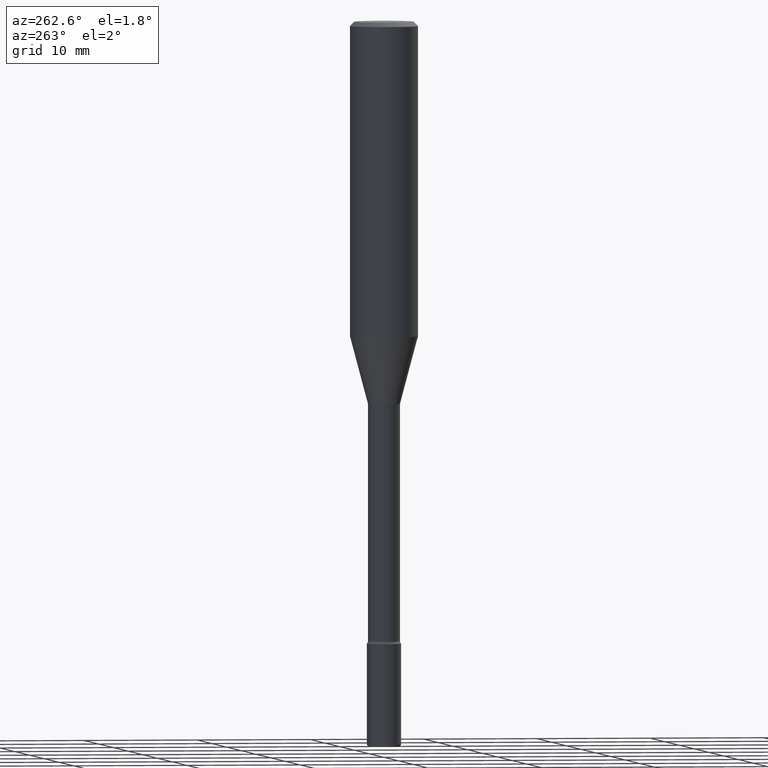
[diagram: clean part render]
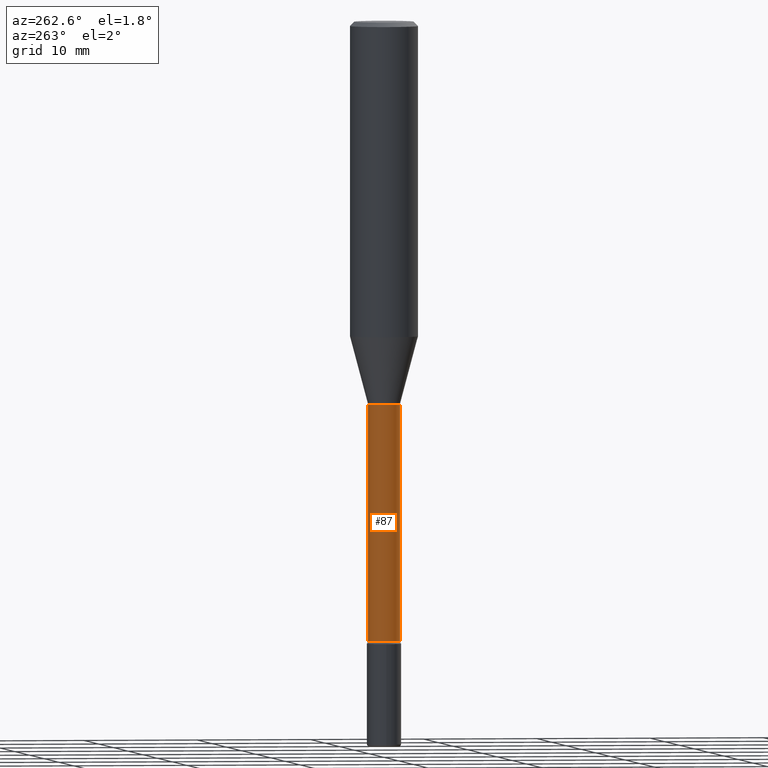
[diagram: same view with one face highlighted and labeled with its STEP entity id]
A machine part, auxiliary view. The second image highlights one B-rep face of the part: STEP entity #87.
In plain terms, the highlighted cylindrical surface (edge-blend (fillet) strip) has radius 1.4097 mm, axis along (-0, 0, 1).
Its self-contained STEP definition (entity closure, byte-faithful):
#2 = VECTOR ( 'NONE', #45, 39.37007874015748143 ) ;
#4 = LINE ( 'NONE', #530, #2 ) ;
#8 = DIRECTION ( 'NONE',  ( -2.445314574720221452E-29, 3.491702207079214016E-15, 1.000000000000000000 ) ) ;
#40 = CIRCLE ( 'NONE', #333, 0.05550000000000001460 ) ;
#45 = DIRECTION ( 'NONE',  ( -2.445314574720221172E-29, 3.491702207079214016E-15, 1.000000000000000000 ) ) ;
#77 = EDGE_LOOP ( 'NONE', ( #473, #384, #168, #252 ) ) ;
#79 = EDGE_CURVE ( 'NONE', #220, #422, #218, .T. ) ;
#86 = CARTESIAN_POINT ( 'NONE',  ( 4.069633519066500838E-16, 0.05549999999999261774, -2.136009927760847749 ) ) ;
#87 = ADVANCED_FACE ( 'NONE', ( #276 ), #487, .T. ) ;
#138 = CARTESIAN_POINT ( 'NONE',  ( -3.875544286115555499E-16, -0.05550000000000462202, -1.320874787463810707 ) ) ;
#143 = DIRECTION ( 'NONE',  ( -6.982962677686265922E-15, -1.000000000000000000, 4.922248637232899302E-15 ) ) ;
#168 = ORIENTED_EDGE ( 'NONE', *, *, #570, .T. ) ;
#192 = DIRECTION ( 'NONE',  ( -2.445314574720221172E-29, 3.491702207079214016E-15, 1.000000000000000000 ) ) ;
#218 = CIRCLE ( 'NONE', #494, 0.05550000000000008399 ) ;
#220 = VERTEX_POINT ( 'NONE', #86 ) ;
#225 = VERTEX_POINT ( 'NONE', #138 ) ;
#238 = EDGE_CURVE ( 'NONE', #220, #353, #499, .T. ) ;
#243 = CARTESIAN_POINT ( 'NONE',  ( 3.943512183469081661E-16, 0.05549999999999540023, -1.320874787463811373 ) ) ;
#252 = ORIENTED_EDGE ( 'NONE', *, *, #436, .F. ) ;
#276 = FACE_OUTER_BOUND ( 'NONE', #77, .T. ) ;
#289 = AXIS2_PLACEMENT_3D ( 'NONE', #446, #544, #451 ) ;
#324 = VECTOR ( 'NONE', #192, 39.37007874015748143 ) ;
#333 = AXIS2_PLACEMENT_3D ( 'NONE', #392, #8, #520 ) ;
#353 = VERTEX_POINT ( 'NONE', #243 ) ;
#354 = CARTESIAN_POINT ( 'NONE',  ( 5.223216208100687058E-29, -7.458310579105662270E-15, -2.136009927760847305 ) ) ;
#384 = ORIENTED_EDGE ( 'NONE', *, *, #79, .T. ) ;
#392 = CARTESIAN_POINT ( 'NONE',  ( 3.229954369165731744E-29, -4.612101410662676179E-15, -1.320874787463810929 ) ) ;
#422 = VERTEX_POINT ( 'NONE', #431 ) ;
#431 = CARTESIAN_POINT ( 'NONE',  ( -3.875544286115360749E-16, -0.05550000000000754330, -2.136009927760847305 ) ) ;
#436 = EDGE_CURVE ( 'NONE', #353, #225, #40, .T. ) ;
#446 = CARTESIAN_POINT ( 'NONE',  ( -1.169113584055446105E-44, 1.669184350826100908E-30, 4.780733988912460139E-16 ) ) ;
#451 = DIRECTION ( 'NONE',  ( -6.982962677686265922E-15, -1.000000000000000000, 3.491702207079214016E-15 ) ) ;
#473 = ORIENTED_EDGE ( 'NONE', *, *, #238, .F. ) ;
#487 = CYLINDRICAL_SURFACE ( 'NONE', #289, 0.05550000000000004929 ) ;
#494 = AXIS2_PLACEMENT_3D ( 'NONE', #354, #534, #143 ) ;
#499 = LINE ( 'NONE', #542, #324 ) ;
#520 = DIRECTION ( 'NONE',  ( -6.982962677686265922E-15, -1.000000000000000000, 4.922248637232905613E-15 ) ) ;
#530 = CARTESIAN_POINT ( 'NONE',  ( -3.875544286115880904E-16, -0.05550000000000004929, 6.718628713841425539E-16 ) ) ;
#534 = DIRECTION ( 'NONE',  ( -2.445314574720221452E-29, 3.491702207079214016E-15, 1.000000000000000000 ) ) ;
#542 = CARTESIAN_POINT ( 'NONE',  ( 3.943512183468558548E-16, 0.05550000000000004929, 2.842839263983495232E-16 ) ) ;
#544 = DIRECTION ( 'NONE',  ( -2.445314574720221452E-29, 3.491702207079214016E-15, 1.000000000000000000 ) ) ;
#570 = EDGE_CURVE ( 'NONE', #422, #225, #4, .T. ) ;